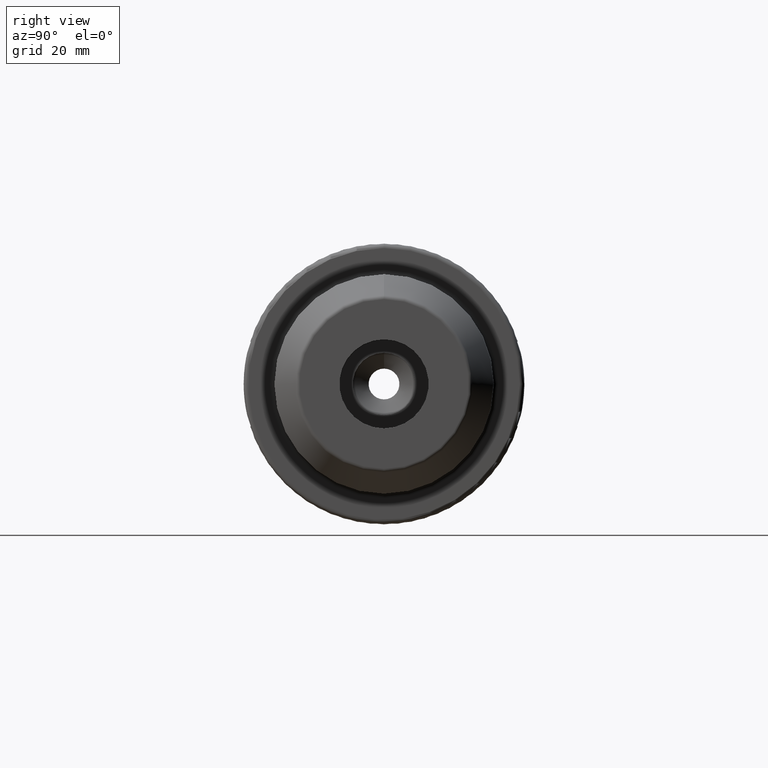
[diagram: clean part render]
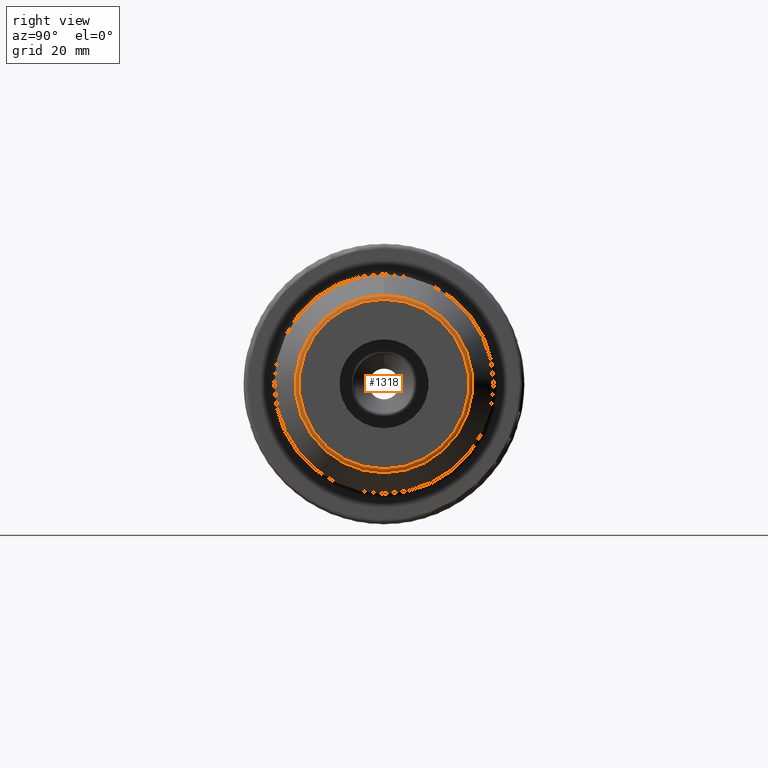
[diagram: same view with one face highlighted and labeled with its STEP entity id]
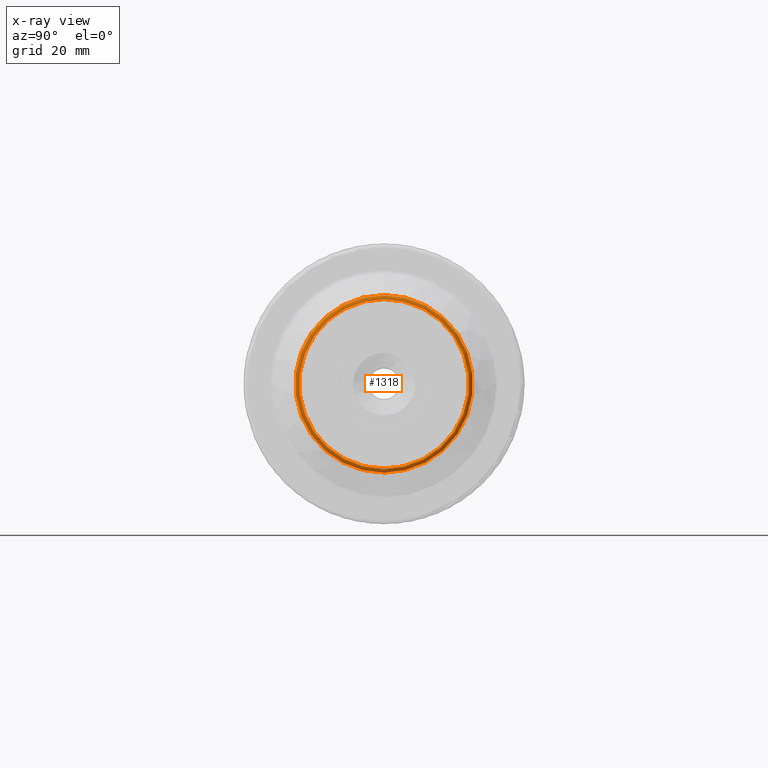
[diagram: x-ray of the same camera — body ghosted, the highlighted face saturated]
A machine part, right view. The second image highlights one B-rep face of the part: STEP entity #1318.
The next image is the same camera in x-ray: the body ghosted, the highlighted face saturated — about 0% of this face is hidden behind the body in this view.
In plain terms, the highlighted toroidal blend (fillet) surface has major radius 19.0476 mm and minor (blend) radius 1 mm.
Its self-contained STEP definition (entity closure, byte-faithful):
#81=TOROIDAL_SURFACE('',#1427,19.0476497308103,1.);
#115=FACE_OUTER_BOUND('',#190,.T.);
#190=EDGE_LOOP('',(#897,#898,#899,#900,#901,#902));
#410=CIRCLE('',#1428,19.0476497308103);
#411=CIRCLE('',#1429,1.);
#412=CIRCLE('',#1430,19.9136751345948);
#413=CIRCLE('',#1431,19.9136751345948);
#414=CIRCLE('',#1432,19.0476497308103);
#523=VERTEX_POINT('',#2073);
#524=VERTEX_POINT('',#2074);
#525=VERTEX_POINT('',#2076);
#526=VERTEX_POINT('',#2078);
#673=EDGE_CURVE('',#523,#524,#410,.T.);
#674=EDGE_CURVE('',#524,#525,#411,.T.);
#675=EDGE_CURVE('',#525,#526,#412,.T.);
#676=EDGE_CURVE('',#526,#525,#413,.T.);
#677=EDGE_CURVE('',#524,#523,#414,.T.);
#897=ORIENTED_EDGE('',*,*,#673,.T.);
#898=ORIENTED_EDGE('',*,*,#674,.T.);
#899=ORIENTED_EDGE('',*,*,#675,.T.);
#900=ORIENTED_EDGE('',*,*,#676,.T.);
#901=ORIENTED_EDGE('',*,*,#674,.F.);
#902=ORIENTED_EDGE('',*,*,#677,.T.);
#1318=ADVANCED_FACE('',(#115),#81,.T.);
#1427=AXIS2_PLACEMENT_3D('',#2072,#1640,#1641);
#1428=AXIS2_PLACEMENT_3D('',#2075,#1642,#1643);
#1429=AXIS2_PLACEMENT_3D('',#2077,#1644,#1645);
#1430=AXIS2_PLACEMENT_3D('',#2079,#1646,#1647);
#1431=AXIS2_PLACEMENT_3D('',#2080,#1648,#1649);
#1432=AXIS2_PLACEMENT_3D('',#2081,#1650,#1651);
#1640=DIRECTION('center_axis',(1.,0.,0.));
#1641=DIRECTION('ref_axis',(0.,0.,-1.));
#1642=DIRECTION('center_axis',(-1.,0.,0.));
#1643=DIRECTION('ref_axis',(0.,1.22464679914735E-16,1.));
#1644=DIRECTION('center_axis',(0.,-1.,-1.22464679914735E-16));
#1645=DIRECTION('ref_axis',(0.,-1.22464679914735E-16,1.));
#1646=DIRECTION('center_axis',(1.,0.,0.));
#1647=DIRECTION('ref_axis',(0.,0.,1.));
#1648=DIRECTION('center_axis',(1.,0.,0.));
#1649=DIRECTION('ref_axis',(0.,0.,1.));
#1650=DIRECTION('center_axis',(-1.,0.,0.));
#1651=DIRECTION('ref_axis',(0.,1.22464679914735E-16,1.));
#2072=CARTESIAN_POINT('Origin',(71.5,0.,0.));
#2073=CARTESIAN_POINT('',(72.5,-4.66532865482337E-15,-19.0476497308103));
#2074=CARTESIAN_POINT('',(72.5,-2.33266432741168E-15,19.0476497308103));
#2075=CARTESIAN_POINT('Origin',(72.5,0.,0.));
#2076=CARTESIAN_POINT('',(72.,-2.43872185128417E-15,19.9136751345948));
#2077=CARTESIAN_POINT('Origin',(71.5,-2.33266432741168E-15,19.0476497308103));
#2078=CARTESIAN_POINT('',(72.,0.,-19.9136751345948));
#2079=CARTESIAN_POINT('Origin',(72.,-2.43872185128417E-15,0.));
#2080=CARTESIAN_POINT('Origin',(72.,-2.43872185128417E-15,0.));
#2081=CARTESIAN_POINT('Origin',(72.5,0.,0.));